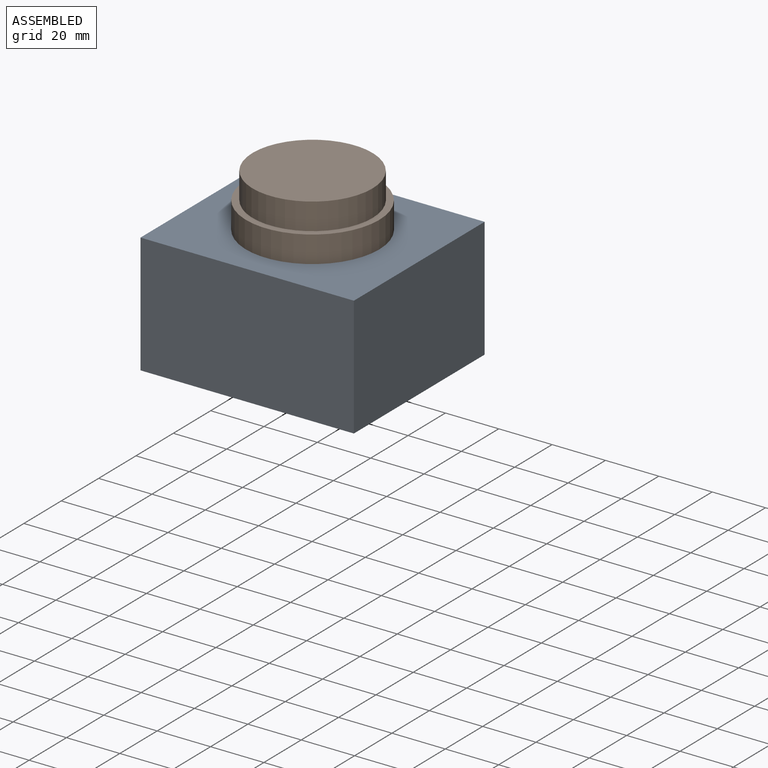
[diagram: assembled view]
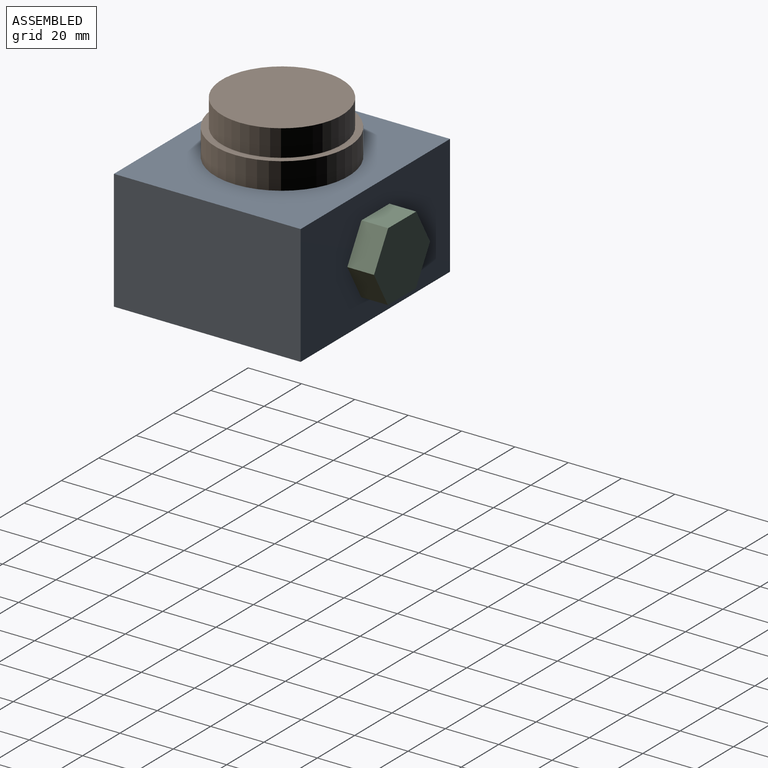
[diagram: assembled view, second angle]
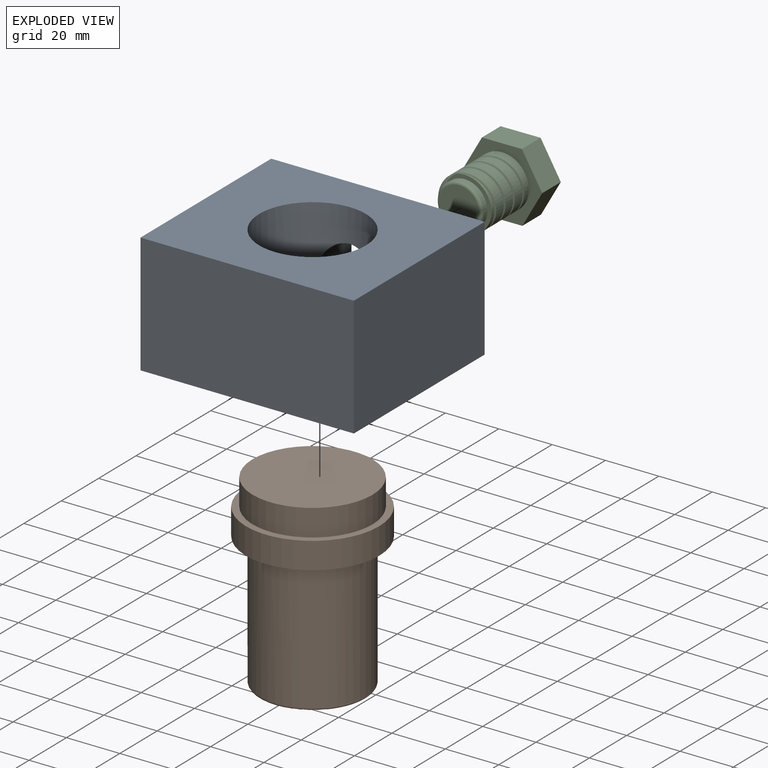
[diagram: exploded view]
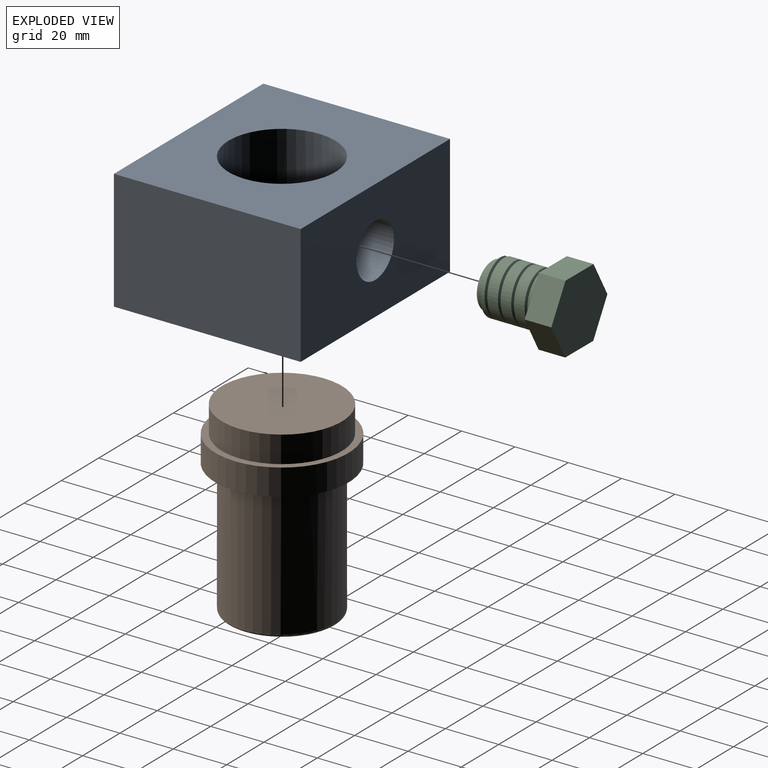
[diagram: exploded view, second angle]
ASSEMBLY  parts=3 mates=4
PART A: 8 faces, bbox 80x45x70 mm
  f0: plane 70x45mm, normal (1,0,0), area 3150mm2, adj f1,f3,f4,f5
  f1: plane 80x45mm, normal (0,0,1), area 3285.8mm2, adj f0,f2,f4,f5,f7
  f2: plane 70x45mm, normal (-1,0,0), area 3150mm2, adj f1,f3,f4,f5
  f3: plane 80x45mm, normal (0,0,-1), area 3600mm2, adj f0,f2,f4,f5
  f4: plane 80x70mm, normal (0,1,0), area 4343.4mm2, adj f0,f1,f2,f3,f6
  f5: plane 80x70mm, normal (0,-1,0), area 4343.4mm2, adj f0,f1,f2,f3,f6
  f6: cylinder r=20mm len=45mm, axis (0,-1,0), area 5330.9mm2, adj f4,f5,f7
  f7: cylinder r=10mm len=20mm, axis (0,0,1), area 1025.2mm2, adj f1,f6
PART B: 8 faces, bbox 50x70x50 mm
  f0: cylinder r=20mm len=49mm, axis (0,1,0), area 6157.5mm2, adj f4,f7
  f1: plane 38x38mm, normal (0,1,0), area 1134.1mm2, adj f7
  f2: cylinder r=25mm len=50mm, axis (0,1,0), area 1570.8mm2, adj f3,f4
  f3: plane 50x50mm, normal (0,-1,0), area 373.1mm2, adj f2,f5
  f4: plane 50x50mm, normal (0,1,0), area 706.9mm2, adj f0,f2
  f5: cylinder r=22.5mm len=45mm, axis (0,1,0), area 1413.7mm2, adj f3,f6
  f6: plane 45x45mm, normal (0,-1,0), area 1590.4mm2, adj f5
  f7: torus R=19mm, axis (0,-1,0), area 193.8mm2, adj f0,f1
PART C: 16 faces, bbox 30.2x33.2x26.2 mm
  f0: cylinder r=10mm len=20mm, axis (0,1,0), area 1025.9mm2, adj f8,f9,f10,f11,f12
  f1: plane 15x10mm, normal (-0.01,0,1), area 150mm2, adj f2,f6,f7,f8
  f2: plane 13.03x10mm, normal (-0.87,0,0.5), area 150mm2, adj f1,f3,f7,f8
  f3: plane 12.95x10mm, normal (-0.86,0,-0.5), area 150mm2, adj f2,f4,f7,f8
  f4: plane 15x10mm, normal (0.01,0,-1), area 150mm2, adj f3,f5,f7,f8
  f5: plane 13.03x10mm, normal (0.87,0,-0.5), area 150mm2, adj f4,f6,f7,f8
  f6: plane 12.95x10mm, normal (0.86,0,0.5), area 150mm2, adj f1,f5,f7,f8
  f7: plane 30x26.07mm, normal (0,1,0), area 584.6mm2, adj f1,f2,f3,f4,f5,f6
  f8: plane 30x26.07mm, normal (0,-1,0), area 270.4mm2, adj f0,f1,f2,f3,f4,f5,f6
  f9: plane 20.16x20.16mm, normal (0,-1,0), area 78.8mm2, adj f0,f11,f12,f13
  f10: plane 1.41x1mm, normal (0,0,-1), area 0.7mm2, adj f0,f11,f12
  f11: bspline ~23.09x20.5mm, area 347.6mm2, adj f0,f9,f10,f12
  f12: bspline ~23.09x20.5mm, area 337.9mm2, adj f0,f9,f10,f11
  f13: cylinder r=8.5mm len=17mm, axis (0,1,0), area 106.8mm2, adj f9,f15
  f14: plane 15x15mm, normal (0,-1,0), area 176.7mm2, adj f15
  f15: torus R=7.5mm, axis (0,-1,0), area 80.3mm2, adj f13,f14
PLACE A rot(axis=(-1,0,0),90deg) t=(61.83,-7.97,108.12)mm
PLACE B rot(axis=(-1,0,0),90deg) t=(61.83,-7.97,58.12)mm
PLACE C t=(61.83,27.03,85.62)mm
MATE planar C.f0 <-> A.f7  axis (0,-1,0) through (61.83,27.03,85.62)mm
MATE planar A.f6 <-> B.f0  axis (0,0,1) through (61.83,-7.97,108.12)mm
MATE cylindrical B.f0 <-> A.f6  axis (0,0,-1) through (61.83,-7.97,83.62)mm
MATE cylindrical A.f7 <-> C.f0  axis (0,1,0) through (61.83,27.03,85.62)mm
